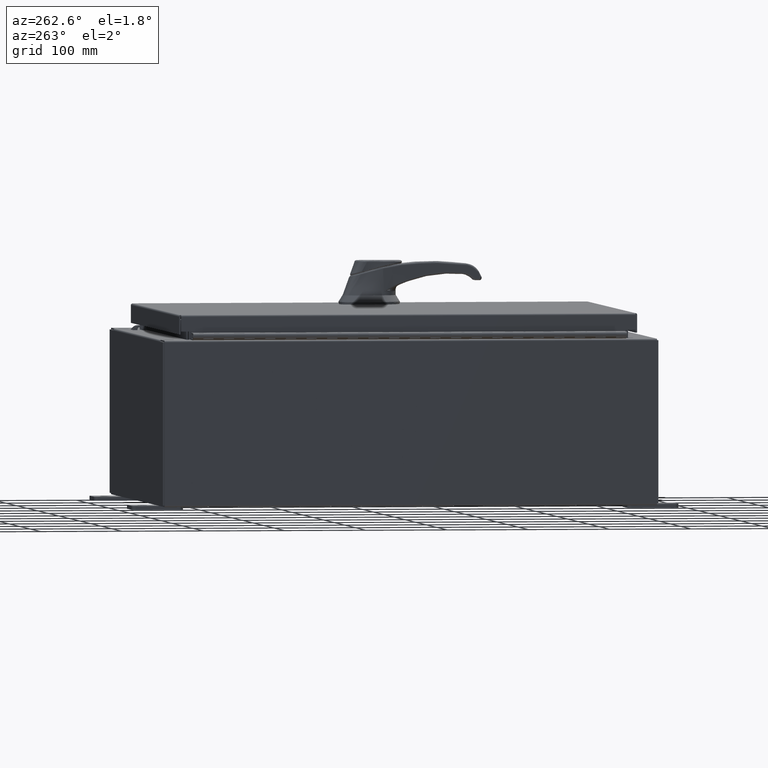
[diagram: clean part render]
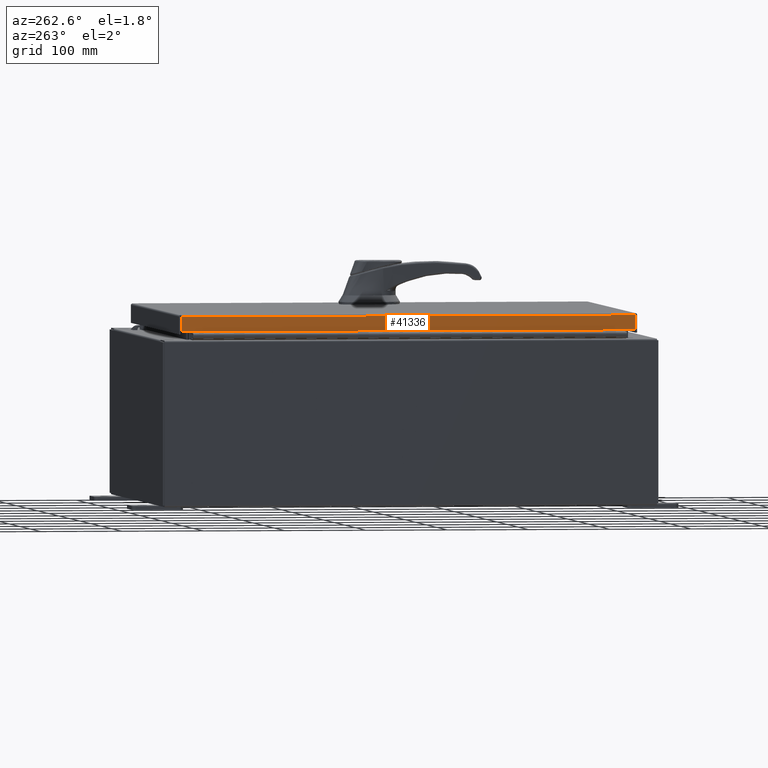
[diagram: same view with one face highlighted and labeled with its STEP entity id]
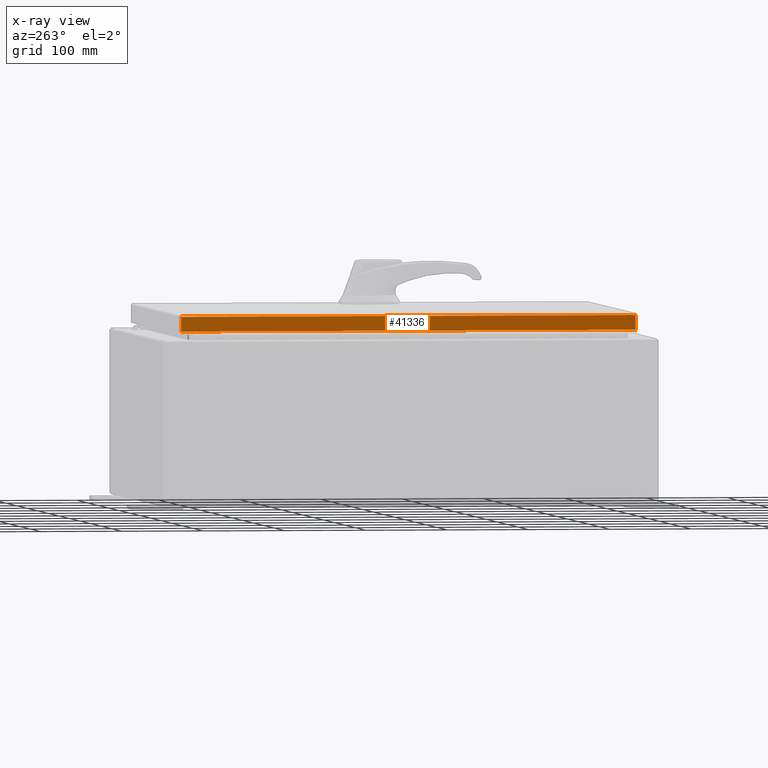
[diagram: x-ray of the same camera — body ghosted, the highlighted face saturated]
A machine part, auxiliary view. The second image highlights one B-rep face of the part: STEP entity #41336.
The next image is the same camera in x-ray: the body ghosted, the highlighted face saturated — about 0% of this face is hidden behind the body in this view.
In plain terms, the highlighted planar face has unit normal (1, 0, -0).
Its self-contained STEP definition (entity closure, byte-faithful):
#3975 = LINE ( 'NONE', #99904, #68382 ) ;
#12939 = CARTESIAN_POINT ( 'NONE',  ( -9.078000000000001200, 11.00515786437627100, -0.7949999999999969300 ) ) ;
#21500 = ORIENTED_EDGE ( 'NONE', *, *, #38200, .F. ) ;
#22669 = CARTESIAN_POINT ( 'NONE',  ( -9.078000000000001200, -11.00515786437626700, -0.7949999999999996000 ) ) ;
#25373 = CARTESIAN_POINT ( 'NONE',  ( -9.077999999999999400, 11.00515786437626900, -0.08770000000000004200 ) ) ;
#26764 = CARTESIAN_POINT ( 'NONE',  ( -9.077999999999999400, -11.00515786437626900, -0.08770000000000007000 ) ) ;
#29729 = CARTESIAN_POINT ( 'NONE',  ( -9.078000000000001200, -11.09400000000000100, -0.7949999999999997100 ) ) ;
#29882 = VECTOR ( 'NONE', #86871, 39.37007874015748100 ) ;
#30772 = EDGE_CURVE ( 'NONE', #47715, #75969, #3975, .T. ) ;
#31065 = AXIS2_PLACEMENT_3D ( 'NONE', #82372, #100065, #47787 ) ;
#32890 = VERTEX_POINT ( 'NONE', #26764 ) ;
#38200 = EDGE_CURVE ( 'NONE', #32890, #98760, #44155, .T. ) ;
#38227 = DIRECTION ( 'NONE',  ( 4.379057701015054300E-047, 1.000000000000000000, 1.231227687788112300E-016 ) ) ;
#38719 = VECTOR ( 'NONE', #69971, 39.37007874015748100 ) ;
#41336 = ADVANCED_FACE ( 'NONE', ( #92936 ), #73580, .F. ) ;
#42426 = EDGE_LOOP ( 'NONE', ( #50664, #72366, #73020, #21500 ) ) ;
#44155 = LINE ( 'NONE', #104845, #38719 ) ;
#46960 = LINE ( 'NONE', #29729, #93322 ) ;
#47644 = DIRECTION ( 'NONE',  ( -3.034122441942816500E-015, 6.982962677686265900E-015, -1.000000000000000000 ) ) ;
#47715 = VERTEX_POINT ( 'NONE', #25373 ) ;
#47787 = DIRECTION ( 'NONE',  ( -3.034122441942816500E-015, 0.0000000000000000000, -1.000000000000000000 ) ) ;
#50664 = ORIENTED_EDGE ( 'NONE', *, *, #91545, .F. ) ;
#68382 = VECTOR ( 'NONE', #47644, 39.37007874015748100 ) ;
#69971 = DIRECTION ( 'NONE',  ( -3.034122441942816500E-015, 6.982962677686265900E-015, -1.000000000000000000 ) ) ;
#72366 = ORIENTED_EDGE ( 'NONE', *, *, #30772, .T. ) ;
#73020 = ORIENTED_EDGE ( 'NONE', *, *, #110105, .F. ) ;
#73580 = PLANE ( 'NONE',  #31065 ) ;
#75969 = VERTEX_POINT ( 'NONE', #12939 ) ;
#76238 = LINE ( 'NONE', #113015, #29882 ) ;
#82372 = CARTESIAN_POINT ( 'NONE',  ( -9.077999999999999400, -3.391264428150889200E-030, 2.780457718396847000E-014 ) ) ;
#86871 = DIRECTION ( 'NONE',  ( 3.735695558659274900E-031, -1.000000000000000000, -1.101212895818006000E-045 ) ) ;
#91545 = EDGE_CURVE ( 'NONE', #47715, #32890, #76238, .T. ) ;
#92936 = FACE_OUTER_BOUND ( 'NONE', #42426, .T. ) ;
#93322 = VECTOR ( 'NONE', #38227, 39.37007874015748100 ) ;
#98760 = VERTEX_POINT ( 'NONE', #22669 ) ;
#99904 = CARTESIAN_POINT ( 'NONE',  ( -9.077999999999999400, 11.00515786437626700, 1.046531838129534400E-013 ) ) ;
#100065 = DIRECTION ( 'NONE',  ( 1.000000000000000000, 3.735695558659274400E-031, -3.034122441942816500E-015 ) ) ;
#104845 = CARTESIAN_POINT ( 'NONE',  ( -9.077999999999999400, -11.00515786437627100, -0.07469999999999976700 ) ) ;
#110105 = EDGE_CURVE ( 'NONE', #98760, #75969, #46960, .T. ) ;
#113015 = CARTESIAN_POINT ( 'NONE',  ( -9.077999999999999400, -11.09400000000000100, -0.08770000000000004200 ) ) ;